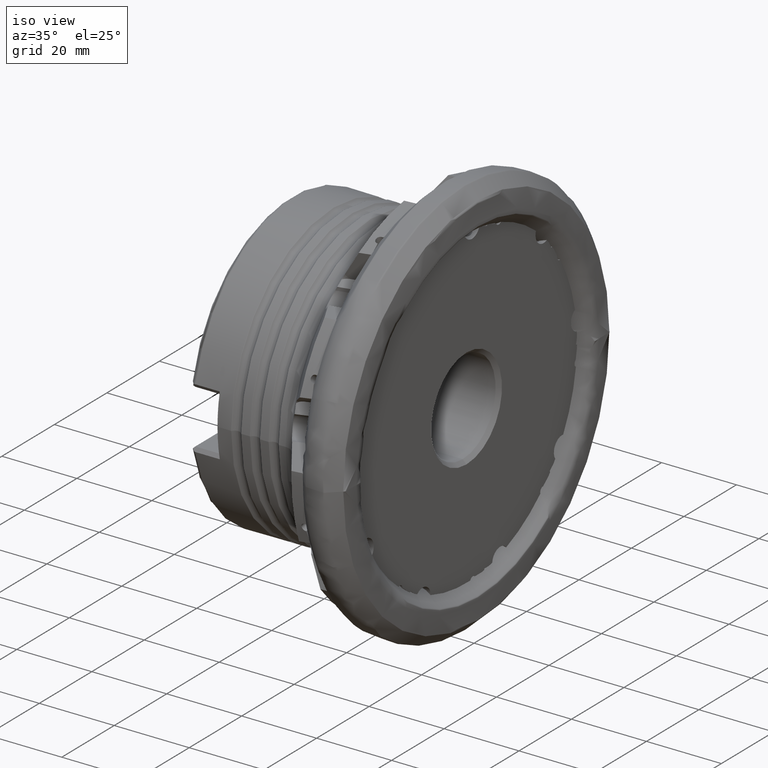
[diagram: clean part render]
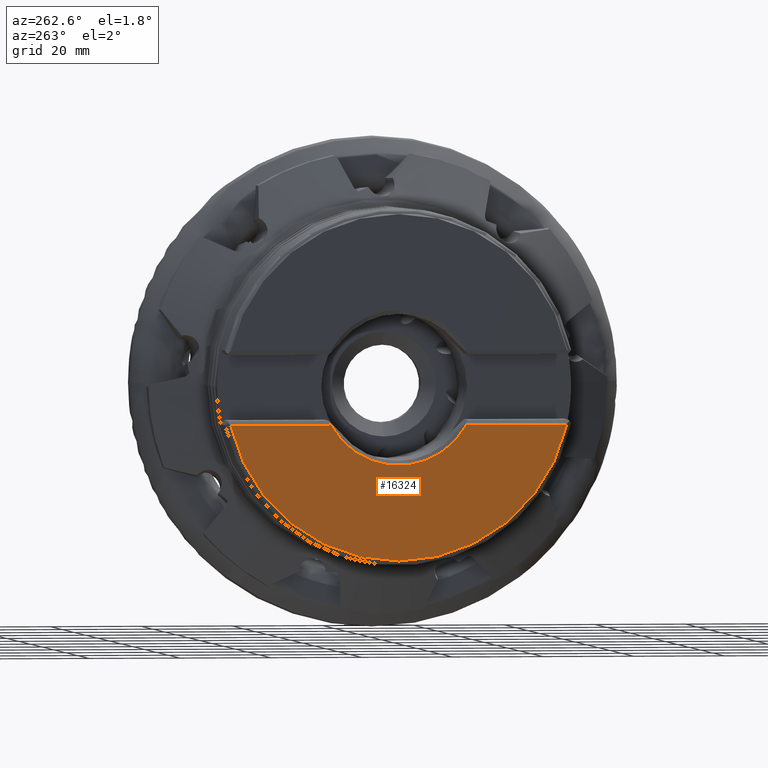
[diagram: tour spotlight — one face highlighted and labeled with its STEP entity id]
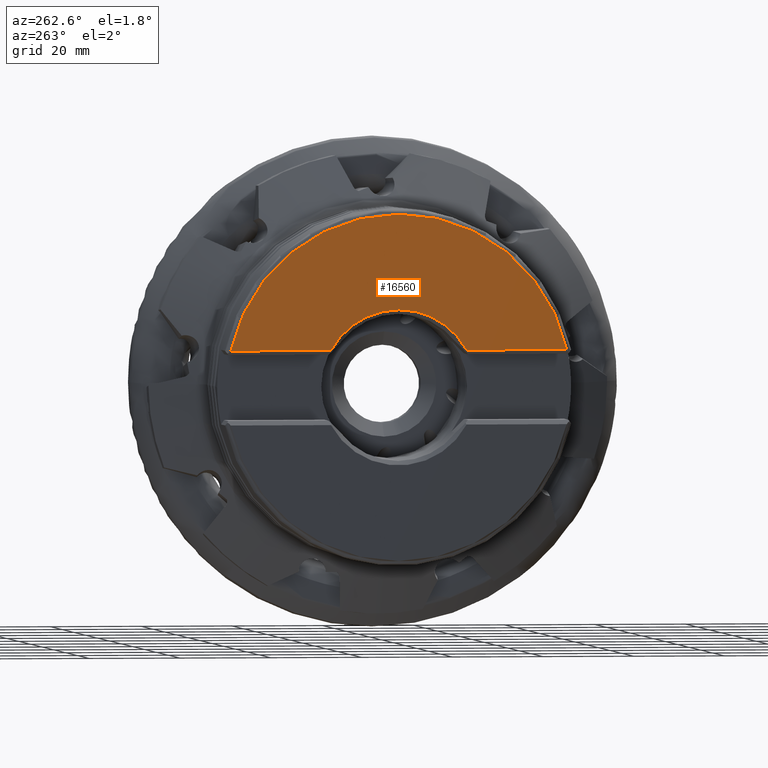
[diagram: tour spotlight — one face highlighted and labeled with its STEP entity id]
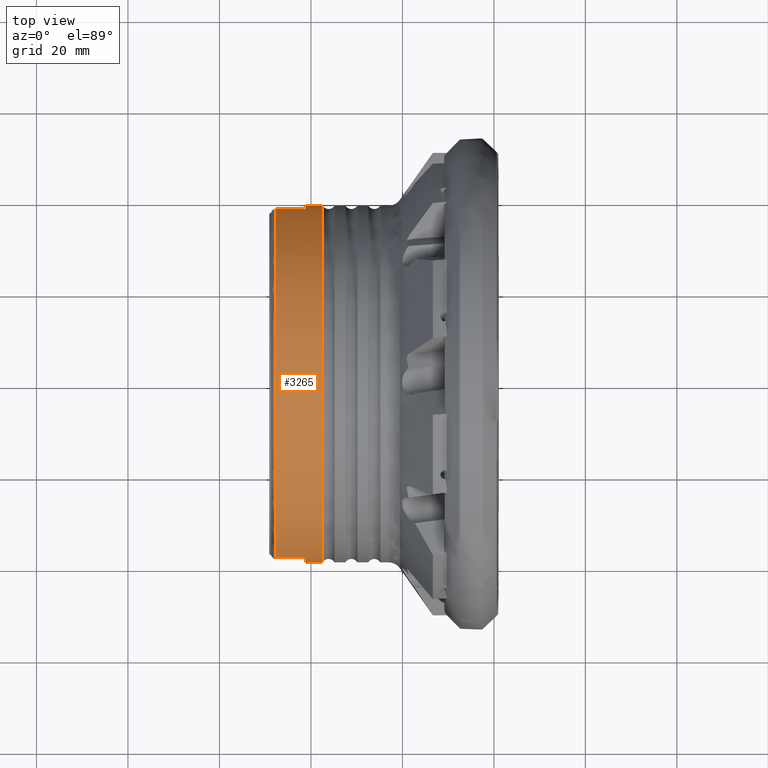
[diagram: tour spotlight — one face highlighted and labeled with its STEP entity id]
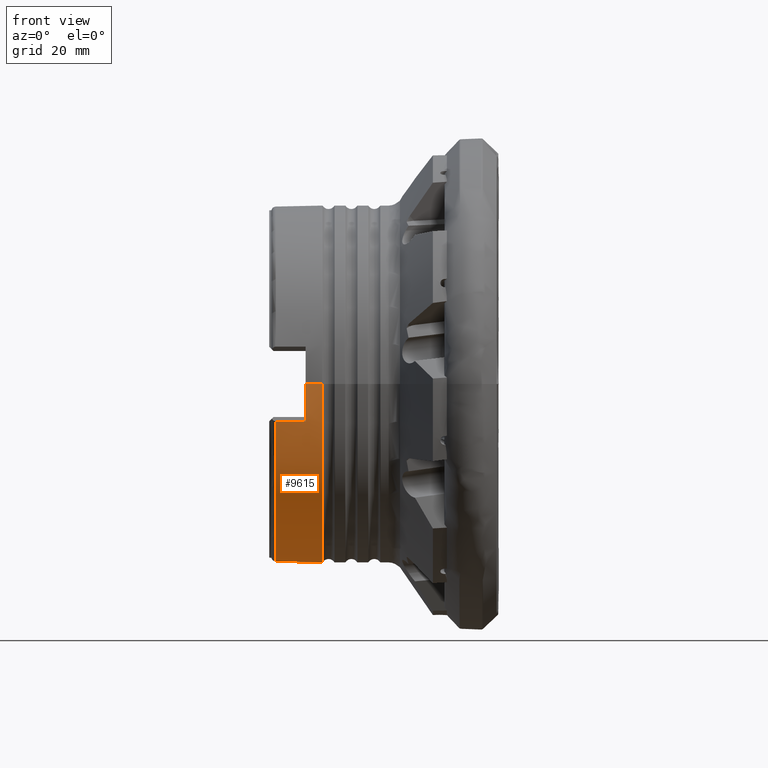
[diagram: tour spotlight — one face highlighted and labeled with its STEP entity id]
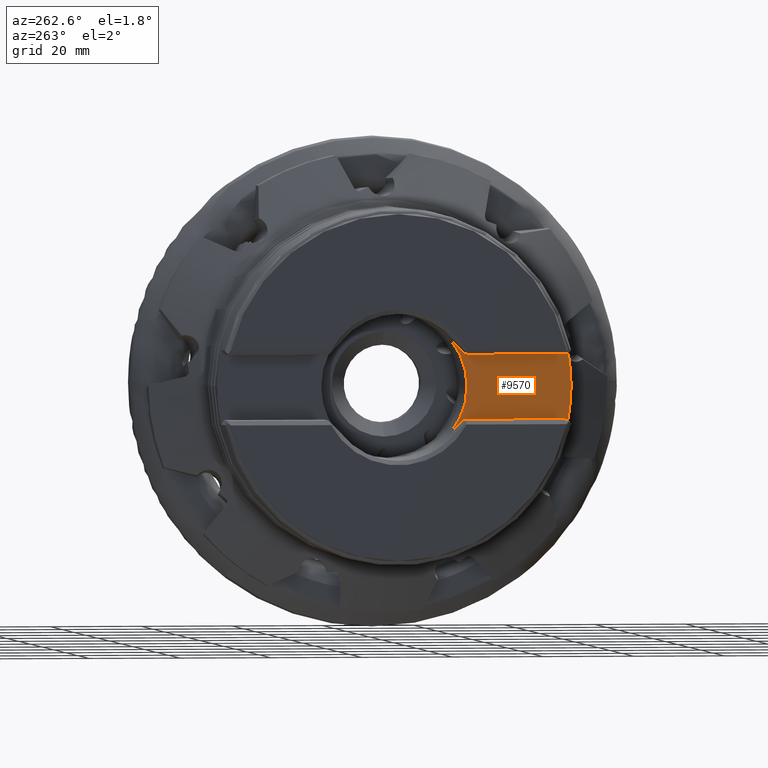
[diagram: tour spotlight — one face highlighted and labeled with its STEP entity id]
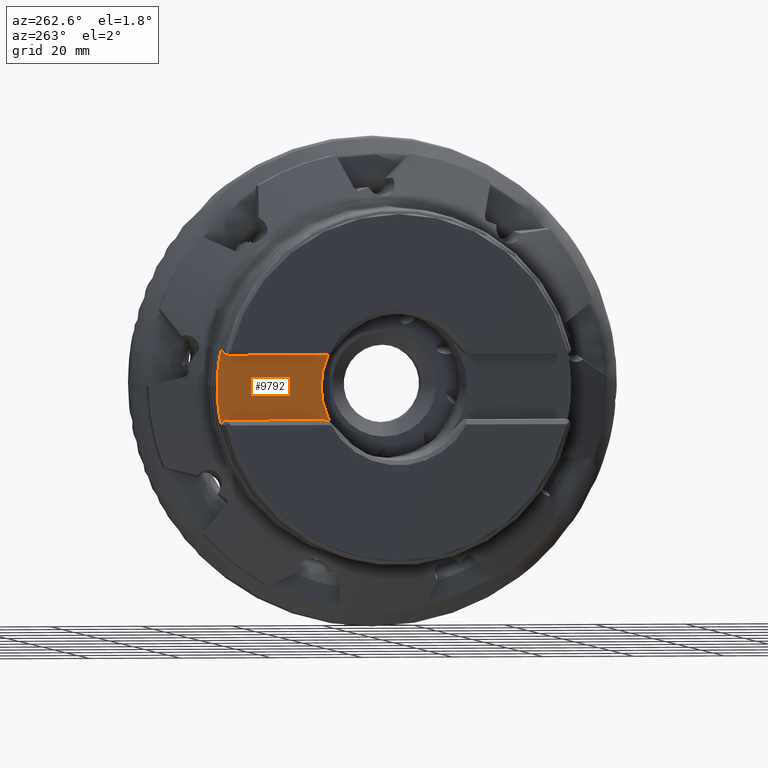
[diagram: tour spotlight — one face highlighted and labeled with its STEP entity id]
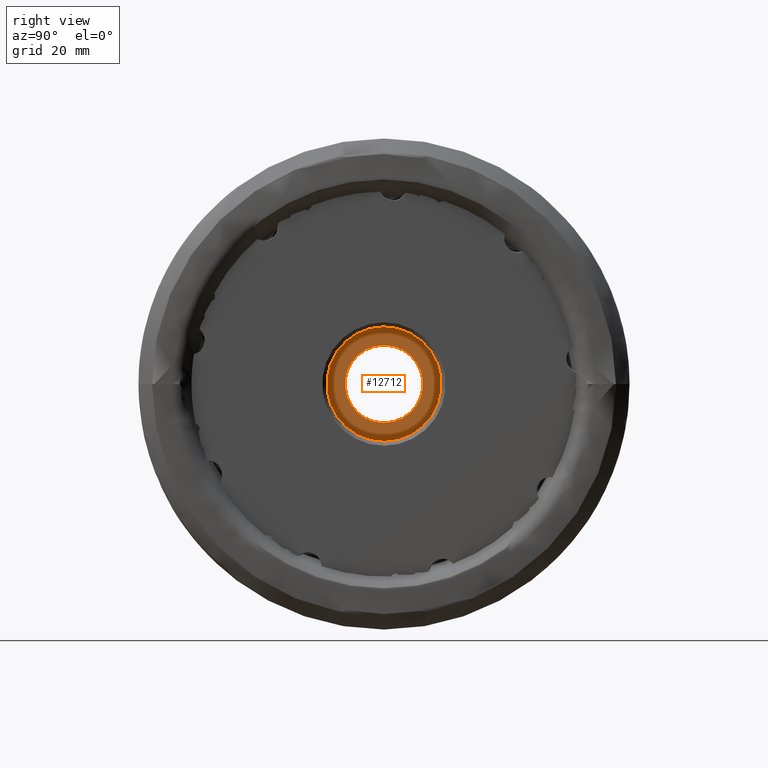
[diagram: tour spotlight — one face highlighted and labeled with its STEP entity id]
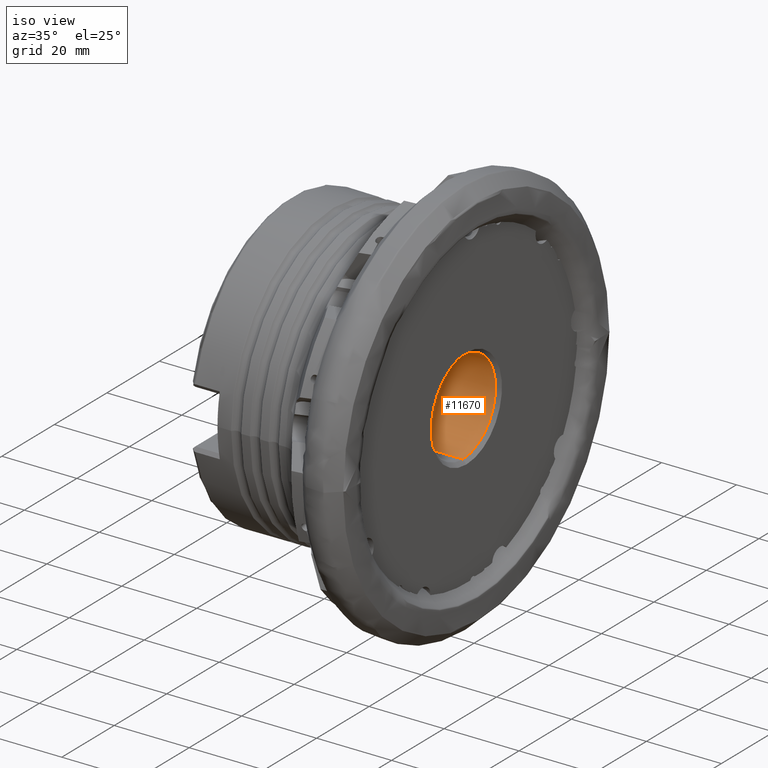
[diagram: tour spotlight — one face highlighted and labeled with its STEP entity id]
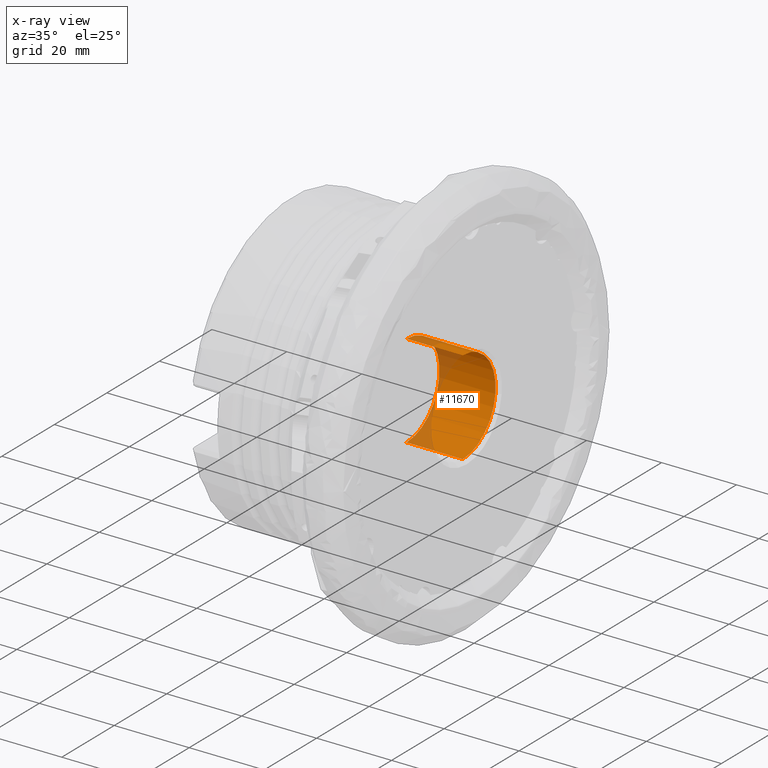
[diagram: x-ray of the same camera — body ghosted, this tour face saturated]
A machine part: a face-by-face anatomy tour. The part has 373 B-rep faces; the first image is the clean iso view, then the 8 largest visible faces are spotlighted one at a time (largest first), each with its STEP entity span.

Face 1 — auxiliary view, entity #16324. In plain terms, the highlighted planar face has unit normal (-1, -0, 0).
Definition (entity closure, byte-faithful):
#573 = ORIENTED_EDGE ( 'NONE', *, *, #5134, .T. ) ;
#898 = CARTESIAN_POINT ( 'NONE',  ( -49.09999999999998700, -54.99999999999999300, -8.149999999999970200 ) ) ;
#1058 = EDGE_CURVE ( 'NONE', #1277, #5319, #6986, .T. ) ;
#1277 = VERTEX_POINT ( 'NONE', #10115 ) ;
#1960 = DIRECTION ( 'NONE',  ( 0.0000000000000000000, -1.000000000000000000, 0.0000000000000000000 ) ) ;
#3374 = DIRECTION ( 'NONE',  ( 1.000000000000000000, 1.224646799147353700E-016, -0.0000000000000000000 ) ) ;
#3530 = ORIENTED_EDGE ( 'NONE', *, *, #4674, .T. ) ;
#3788 = CARTESIAN_POINT ( 'NONE',  ( -49.09999999999998700, -54.99999999999999300, -8.149999999999970200 ) ) ;
#3851 = EDGE_CURVE ( 'NONE', #14277, #17532, #11386, .T. ) ;
#4475 = CARTESIAN_POINT ( 'NONE',  ( -49.09999999999999400, 37.03616332997231100, -8.149999999999980800 ) ) ;
#4507 = DIRECTION ( 'NONE',  ( -1.000000000000000000, -1.224646799147353700E-016, 0.0000000000000000000 ) ) ;
#4524 = AXIS2_PLACEMENT_3D ( 'NONE', #9816, #4507, #13952 ) ;
#4674 = EDGE_CURVE ( 'NONE', #5319, #17532, #14117, .T. ) ;
#4782 = ORIENTED_EDGE ( 'NONE', *, *, #3851, .F. ) ;
#5134 = EDGE_CURVE ( 'NONE', #14277, #1277, #10305, .T. ) ;
#5319 = VERTEX_POINT ( 'NONE', #16248 ) ;
#5609 = AXIS2_PLACEMENT_3D ( 'NONE', #6976, #6993, #7051 ) ;
#6850 = CARTESIAN_POINT ( 'NONE',  ( -49.09999999999999400, -2.317644067386394200E-015, 0.0000000000000000000 ) ) ;
#6976 = CARTESIAN_POINT ( 'NONE',  ( -49.09999999999999400, -6.957263605894438000E-015, 0.0000000000000000000 ) ) ;
#6986 = CIRCLE ( 'NONE', #16392, 17.02499999999999900 ) ;
#6993 = DIRECTION ( 'NONE',  ( 1.000000000000000000, 1.224646799147353700E-016, -0.0000000000000000000 ) ) ;
#7051 = DIRECTION ( 'NONE',  ( 1.829766701682359500E-016, -1.000000000000000000, 0.0000000000000000000 ) ) ;
#7327 = ORIENTED_EDGE ( 'NONE', *, *, #1058, .T. ) ;
#7430 = FACE_OUTER_BOUND ( 'NONE', #17092, .T. ) ;
#9816 = CARTESIAN_POINT ( 'NONE',  ( -49.09999999999999400, -6.013015783813505900E-015, 0.0000000000000000000 ) ) ;
#10115 = CARTESIAN_POINT ( 'NONE',  ( -49.09999999999999400, -14.94751233483352800, -8.149999999999973700 ) ) ;
#10305 = LINE ( 'NONE', #898, #17094 ) ;
#10517 = VECTOR ( 'NONE', #17362, 1000.000000000000000 ) ;
#11386 = CIRCLE ( 'NONE', #5609, 37.92228756555322600 ) ;
#12583 = PLANE ( 'NONE',  #4524 ) ;
#13952 = DIRECTION ( 'NONE',  ( 1.224646799147353700E-016, -1.000000000000000000, 0.0000000000000000000 ) ) ;
#14117 = LINE ( 'NONE', #3788, #10517 ) ;
#14277 = VERTEX_POINT ( 'NONE', #17558 ) ;
#15848 = DIRECTION ( 'NONE',  ( -1.224646799147353700E-016, 1.000000000000000000, -1.224646799147338900E-016 ) ) ;
#16248 = CARTESIAN_POINT ( 'NONE',  ( -49.09999999999999400, 14.94751233483352600, -8.149999999999977300 ) ) ;
#16324 = ADVANCED_FACE ( 'NONE', ( #7430 ), #12583, .T. ) ;
#16392 = AXIS2_PLACEMENT_3D ( 'NONE', #6850, #3374, #1960 ) ;
#17092 = EDGE_LOOP ( 'NONE', ( #573, #7327, #3530, #4782 ) ) ;
#17094 = VECTOR ( 'NONE', #15848, 1000.000000000000000 ) ;
#17362 = DIRECTION ( 'NONE',  ( -1.224646799147353700E-016, 1.000000000000000000, -1.224646799147338900E-016 ) ) ;
#17532 = VERTEX_POINT ( 'NONE', #4475 ) ;
#17558 = CARTESIAN_POINT ( 'NONE',  ( -49.09999999999998700, -37.03616332997404500, -8.149999999999970200 ) ) ;

Face 2 — auxiliary view, entity #16560. In plain terms, the highlighted planar face has unit normal (-1, -0, 0).
Definition (entity closure, byte-faithful):
#668 = DIRECTION ( 'NONE',  ( 0.0000000000000000000, -1.000000000000000000, -8.881784197001252300E-016 ) ) ;
#1023 = DIRECTION ( 'NONE',  ( 1.224646799147353700E-016, -1.000000000000000000, -1.224646799147360800E-016 ) ) ;
#2411 = CARTESIAN_POINT ( 'NONE',  ( -49.09999999999999400, -6.013015783813505900E-015, 0.0000000000000000000 ) ) ;
#2452 = DIRECTION ( 'NONE',  ( 1.000000000000000000, 1.224646799147353700E-016, -0.0000000000000000000 ) ) ;
#2528 = CIRCLE ( 'NONE', #10397, 37.92228756555322600 ) ;
#2537 = EDGE_LOOP ( 'NONE', ( #16718, #15154, #14305, #8070, #7934 ) ) ;
#2991 = AXIS2_PLACEMENT_3D ( 'NONE', #17020, #8877, #668 ) ;
#3588 = LINE ( 'NONE', #4683, #14383 ) ;
#4310 = CARTESIAN_POINT ( 'NONE',  ( -49.09999999999999400, -6.957263605894438000E-015, 0.0000000000000000000 ) ) ;
#4683 = CARTESIAN_POINT ( 'NONE',  ( -49.09999999999998700, -54.99999999999999300, 8.149999999999996800 ) ) ;
#4809 = VERTEX_POINT ( 'NONE', #16449 ) ;
#5182 = PLANE ( 'NONE',  #15414 ) ;
#5308 = FACE_OUTER_BOUND ( 'NONE', #2537, .T. ) ;
#5516 = VERTEX_POINT ( 'NONE', #5958 ) ;
#5680 = DIRECTION ( 'NONE',  ( 1.829766701682359500E-016, -1.000000000000000000, 0.0000000000000000000 ) ) ;
#5958 = CARTESIAN_POINT ( 'NONE',  ( -49.09999999999998700, -37.03616332997403000, 8.149999999999998600 ) ) ;
#6230 = EDGE_CURVE ( 'NONE', #4809, #16068, #15795, .T. ) ;
#6534 = DIRECTION ( 'NONE',  ( 1.224646799147353700E-016, -1.000000000000000000, 0.0000000000000000000 ) ) ;
#6781 = VERTEX_POINT ( 'NONE', #13523 ) ;
#7438 = VERTEX_POINT ( 'NONE', #11263 ) ;
#7603 = EDGE_CURVE ( 'NONE', #7438, #6781, #10019, .T. ) ;
#7934 = ORIENTED_EDGE ( 'NONE', *, *, #6230, .T. ) ;
#8070 = ORIENTED_EDGE ( 'NONE', *, *, #8683, .T. ) ;
#8670 = AXIS2_PLACEMENT_3D ( 'NONE', #10586, #2452, #11940 ) ;
#8683 = EDGE_CURVE ( 'NONE', #6781, #4809, #11902, .T. ) ;
#8877 = DIRECTION ( 'NONE',  ( 1.000000000000000000, 1.224646799147353700E-016, -0.0000000000000000000 ) ) ;
#10019 = LINE ( 'NONE', #11877, #13604 ) ;
#10397 = AXIS2_PLACEMENT_3D ( 'NONE', #4310, #13751, #5680 ) ;
#10586 = CARTESIAN_POINT ( 'NONE',  ( -49.09999999999999400, -2.317644067386394200E-015, 0.0000000000000000000 ) ) ;
#10655 = EDGE_CURVE ( 'NONE', #7438, #5516, #2528, .T. ) ;
#11263 = CARTESIAN_POINT ( 'NONE',  ( -49.09999999999998000, 37.03616332997404500, 8.149999999999993200 ) ) ;
#11783 = CARTESIAN_POINT ( 'NONE',  ( -49.09999999999999400, -14.94751233483351300, 8.150000000000002100 ) ) ;
#11877 = CARTESIAN_POINT ( 'NONE',  ( -49.09999999999998700, -54.99999999999999300, 8.149999999999996800 ) ) ;
#11902 = CIRCLE ( 'NONE', #2991, 17.02499999999999900 ) ;
#11940 = DIRECTION ( 'NONE',  ( 0.0000000000000000000, -1.000000000000000000, 0.0000000000000000000 ) ) ;
#11943 = EDGE_CURVE ( 'NONE', #16068, #5516, #3588, .T. ) ;
#13523 = CARTESIAN_POINT ( 'NONE',  ( -49.09999999999999400, 14.94751233483351000, 8.150000000000005700 ) ) ;
#13604 = VECTOR ( 'NONE', #1023, 1000.000000000000000 ) ;
#13751 = DIRECTION ( 'NONE',  ( 1.000000000000000000, 1.224646799147353700E-016, -0.0000000000000000000 ) ) ;
#14305 = ORIENTED_EDGE ( 'NONE', *, *, #7603, .T. ) ;
#14383 = VECTOR ( 'NONE', #16873, 1000.000000000000000 ) ;
#14636 = DIRECTION ( 'NONE',  ( -1.000000000000000000, -1.224646799147353700E-016, 0.0000000000000000000 ) ) ;
#15154 = ORIENTED_EDGE ( 'NONE', *, *, #10655, .F. ) ;
#15414 = AXIS2_PLACEMENT_3D ( 'NONE', #2411, #14636, #6534 ) ;
#15795 = CIRCLE ( 'NONE', #8670, 17.02499999999999900 ) ;
#16068 = VERTEX_POINT ( 'NONE', #11783 ) ;
#16449 = CARTESIAN_POINT ( 'NONE',  ( -49.09999999999999400, 0.0000000000000000000, 17.02499999999999900 ) ) ;
#16560 = ADVANCED_FACE ( 'NONE', ( #5308 ), #5182, .T. ) ;
#16718 = ORIENTED_EDGE ( 'NONE', *, *, #11943, .T. ) ;
#16873 = DIRECTION ( 'NONE',  ( 1.224646799147353700E-016, -1.000000000000000000, -1.224646799147360800E-016 ) ) ;
#17020 = CARTESIAN_POINT ( 'NONE',  ( -49.09999999999999400, -2.317644067386394200E-015, 0.0000000000000000000 ) ) ;

Face 3 — top view, entity #3265. In plain terms, the highlighted cylindrical surface (partial cylindrical patch) has radius 39 mm, axis along (1, 0, -0).
Definition (entity closure, byte-faithful):
#383 = DIRECTION ( 'NONE',  ( -1.000000000000000000, -0.0000000000000000000, 0.0000000000000000000 ) ) ;
#434 = LINE ( 'NONE', #9665, #7751 ) ;
#761 = ORIENTED_EDGE ( 'NONE', *, *, #7825, .F. ) ;
#766 = ORIENTED_EDGE ( 'NONE', *, *, #8014, .T. ) ;
#821 = CARTESIAN_POINT ( 'NONE',  ( -41.14999999999999100, 38.13502706105393300, 8.168213455382060700 ) ) ;
#1305 = CARTESIAN_POINT ( 'NONE',  ( -41.14999999999999100, -5.039421578491359400E-015, 0.0000000000000000000 ) ) ;
#1484 = DIRECTION ( 'NONE',  ( -1.000000000000000000, -1.224646799147353700E-016, 0.0000000000000000000 ) ) ;
#1939 = LINE ( 'NONE', #15662, #15968 ) ;
#2397 = VERTEX_POINT ( 'NONE', #9829 ) ;
#2426 = CARTESIAN_POINT ( 'NONE',  ( 4.776122516674680200E-015, -39.00000000000000700, 4.776122516674678700E-015 ) ) ;
#2608 = AXIS2_PLACEMENT_3D ( 'NONE', #1305, #10855, #2727 ) ;
#2713 = VERTEX_POINT ( 'NONE', #16785 ) ;
#2727 = DIRECTION ( 'NONE',  ( 0.0000000000000000000, 0.0000000000000000000, -1.000000000000000000 ) ) ;
#3092 = ORIENTED_EDGE ( 'NONE', *, *, #12053, .F. ) ;
#3156 = CIRCLE ( 'NONE', #5433, 39.00000000000000700 ) ;
#3265 = ADVANCED_FACE ( 'NONE', ( #16065 ), #12432, .T. ) ;
#3528 = CARTESIAN_POINT ( 'NONE',  ( -37.55978721798717900, -4.599747319316368700E-015, 0.0000000000000000000 ) ) ;
#3539 = ORIENTED_EDGE ( 'NONE', *, *, #15251, .T. ) ;
#3883 = LINE ( 'NONE', #2426, #7482 ) ;
#4278 = ORIENTED_EDGE ( 'NONE', *, *, #5754, .T. ) ;
#4435 = AXIS2_PLACEMENT_3D ( 'NONE', #14542, #6447, #15913 ) ;
#4779 = CARTESIAN_POINT ( 'NONE',  ( -47.64999999999999100, 38.13502706105394000, 8.168213455382062400 ) ) ;
#4789 = VERTEX_POINT ( 'NONE', #8074 ) ;
#4807 = VECTOR ( 'NONE', #5286, 1000.000000000000000 ) ;
#4909 = DIRECTION ( 'NONE',  ( -1.779203565104417100E-016, 1.000000000000000000, 0.0000000000000000000 ) ) ;
#5286 = DIRECTION ( 'NONE',  ( 1.000000000000000000, 1.224646799147353700E-016, -0.0000000000000000000 ) ) ;
#5383 = EDGE_CURVE ( 'NONE', #12116, #7543, #434, .T. ) ;
#5433 = AXIS2_PLACEMENT_3D ( 'NONE', #3528, #12983, #4909 ) ;
#5754 = EDGE_CURVE ( 'NONE', #6384, #8929, #11974, .T. ) ;
#6137 = DIRECTION ( 'NONE',  ( 1.000000000000000000, 1.224646799147353700E-016, -0.0000000000000000000 ) ) ;
#6159 = DIRECTION ( 'NONE',  ( -1.224646799147353700E-016, 1.000000000000000000, 0.0000000000000000000 ) ) ;
#6221 = DIRECTION ( 'NONE',  ( 1.000000000000000000, 1.224646799147353700E-016, -0.0000000000000000000 ) ) ;
#6246 = CARTESIAN_POINT ( 'NONE',  ( 0.0000000000000000000, 0.0000000000000000000, 0.0000000000000000000 ) ) ;
#6384 = VERTEX_POINT ( 'NONE', #12572 ) ;
#6447 = DIRECTION ( 'NONE',  ( 1.000000000000000000, 1.224646799147353700E-016, -0.0000000000000000000 ) ) ;
#6675 = CIRCLE ( 'NONE', #4435, 39.00000000000001400 ) ;
#7027 = EDGE_CURVE ( 'NONE', #2397, #2713, #1939, .T. ) ;
#7172 = AXIS2_PLACEMENT_3D ( 'NONE', #6246, #6137, #6159 ) ;
#7237 = EDGE_CURVE ( 'NONE', #4789, #8929, #11089, .T. ) ;
#7482 = VECTOR ( 'NONE', #17341, 1000.000000000000000 ) ;
#7543 = VERTEX_POINT ( 'NONE', #4779 ) ;
#7751 = VECTOR ( 'NONE', #1484, 1000.000000000000000 ) ;
#7825 = EDGE_CURVE ( 'NONE', #12116, #2397, #16375, .T. ) ;
#8014 = EDGE_CURVE ( 'NONE', #4789, #8424, #3883, .T. ) ;
#8020 = ORIENTED_EDGE ( 'NONE', *, *, #7237, .F. ) ;
#8074 = CARTESIAN_POINT ( 'NONE',  ( -41.14999999999999100, -39.00000000000001400, 4.776122516674678700E-015 ) ) ;
#8424 = VERTEX_POINT ( 'NONE', #17394 ) ;
#8518 = ORIENTED_EDGE ( 'NONE', *, *, #7027, .F. ) ;
#8611 = CARTESIAN_POINT ( 'NONE',  ( -41.14999999999999100, -5.039421578491359400E-015, 0.0000000000000000000 ) ) ;
#8929 = VERTEX_POINT ( 'NONE', #14786 ) ;
#9665 = CARTESIAN_POINT ( 'NONE',  ( -4.670193882571740500E-015, 38.13502706105393300, 8.168213455382064200 ) ) ;
#9829 = CARTESIAN_POINT ( 'NONE',  ( -41.14999999999999100, 39.00000000000000000, 0.0000000000000000000 ) ) ;
#9977 = DIRECTION ( 'NONE',  ( 0.0000000000000000000, 1.065814103640150300E-014, -1.000000000000000000 ) ) ;
#10855 = DIRECTION ( 'NONE',  ( -1.000000000000000000, -0.0000000000000000000, 0.0000000000000000000 ) ) ;
#11089 = CIRCLE ( 'NONE', #2608, 39.00000000000000700 ) ;
#11974 = LINE ( 'NONE', #14739, #4807 ) ;
#12053 = EDGE_CURVE ( 'NONE', #2713, #8424, #3156, .T. ) ;
#12116 = VERTEX_POINT ( 'NONE', #821 ) ;
#12432 = CYLINDRICAL_SURFACE ( 'NONE', #7172, 39.00000000000000700 ) ;
#12572 = CARTESIAN_POINT ( 'NONE',  ( -47.64999999999998400, -38.13502706105394700, 8.168213455382064200 ) ) ;
#12983 = DIRECTION ( 'NONE',  ( 1.000000000000000000, 1.224646799147353700E-016, -0.0000000000000000000 ) ) ;
#14542 = CARTESIAN_POINT ( 'NONE',  ( -47.64999999999999100, -5.835441997937139400E-015, 0.0000000000000000000 ) ) ;
#14739 = CARTESIAN_POINT ( 'NONE',  ( 4.670193882571739800E-015, -38.13502706105393300, 8.168213455382069600 ) ) ;
#14786 = CARTESIAN_POINT ( 'NONE',  ( -41.14999999999999100, -38.13502706105394000, 8.168213455382064200 ) ) ;
#15251 = EDGE_CURVE ( 'NONE', #7543, #6384, #6675, .T. ) ;
#15662 = CARTESIAN_POINT ( 'NONE',  ( -4.776122516674680200E-015, 39.00000000000000700, 0.0000000000000000000 ) ) ;
#15913 = DIRECTION ( 'NONE',  ( -1.779203565104416900E-016, 1.000000000000000000, 0.0000000000000000000 ) ) ;
#15915 = AXIS2_PLACEMENT_3D ( 'NONE', #8611, #383, #9977 ) ;
#15968 = VECTOR ( 'NONE', #6221, 1000.000000000000000 ) ;
#16065 = FACE_OUTER_BOUND ( 'NONE', #17561, .T. ) ;
#16255 = ORIENTED_EDGE ( 'NONE', *, *, #5383, .T. ) ;
#16375 = CIRCLE ( 'NONE', #15915, 39.00000000000000700 ) ;
#16785 = CARTESIAN_POINT ( 'NONE',  ( -37.55978721798718600, 39.00000000000000000, 0.0000000000000000000 ) ) ;
#17341 = DIRECTION ( 'NONE',  ( 1.000000000000000000, 1.224646799147353700E-016, -0.0000000000000000000 ) ) ;
#17394 = CARTESIAN_POINT ( 'NONE',  ( -37.55978721798717100, -39.00000000000001400, 4.776122516674678700E-015 ) ) ;
#17561 = EDGE_LOOP ( 'NONE', ( #8020, #766, #3092, #8518, #761, #16255, #3539, #4278 ) ) ;

Face 4 — front view, entity #9615. In plain terms, the highlighted cylindrical surface (partial cylindrical patch) has radius 39 mm, axis along (1, 0, -0).
Definition (entity closure, byte-faithful):
#1 = LINE ( 'NONE', #11144, #6903 ) ;
#526 = DIRECTION ( 'NONE',  ( -1.000000000000000000, -1.224646799147353700E-016, 0.0000000000000000000 ) ) ;
#663 = DIRECTION ( 'NONE',  ( 1.000000000000000000, 1.224646799147353700E-016, -0.0000000000000000000 ) ) ;
#1154 = ORIENTED_EDGE ( 'NONE', *, *, #7027, .T. ) ;
#1202 = ORIENTED_EDGE ( 'NONE', *, *, #3979, .F. ) ;
#1403 = VERTEX_POINT ( 'NONE', #16544 ) ;
#1600 = DIRECTION ( 'NONE',  ( 1.000000000000000000, 1.224646799147353700E-016, -0.0000000000000000000 ) ) ;
#1740 = CIRCLE ( 'NONE', #4150, 39.00000000000001400 ) ;
#1939 = LINE ( 'NONE', #15662, #15968 ) ;
#1944 = AXIS2_PLACEMENT_3D ( 'NONE', #13433, #12087, #16179 ) ;
#1953 = ORIENTED_EDGE ( 'NONE', *, *, #5438, .T. ) ;
#2275 = CARTESIAN_POINT ( 'NONE',  ( -41.14999999999999100, 38.13502706105394000, -8.168213455382019800 ) ) ;
#2397 = VERTEX_POINT ( 'NONE', #9829 ) ;
#2426 = CARTESIAN_POINT ( 'NONE',  ( 4.776122516674680200E-015, -39.00000000000000700, 4.776122516674678700E-015 ) ) ;
#2713 = VERTEX_POINT ( 'NONE', #16785 ) ;
#3610 = DIRECTION ( 'NONE',  ( 1.000000000000000000, 1.224646799147353700E-016, -0.0000000000000000000 ) ) ;
#3850 = CYLINDRICAL_SURFACE ( 'NONE', #1944, 39.00000000000000700 ) ;
#3883 = LINE ( 'NONE', #2426, #7482 ) ;
#3979 = EDGE_CURVE ( 'NONE', #14437, #4789, #7369, .T. ) ;
#4150 = AXIS2_PLACEMENT_3D ( 'NONE', #8873, #663, #10246 ) ;
#4789 = VERTEX_POINT ( 'NONE', #8074 ) ;
#5067 = AXIS2_PLACEMENT_3D ( 'NONE', #11714, #3610, #13072 ) ;
#5314 = ORIENTED_EDGE ( 'NONE', *, *, #6154, .F. ) ;
#5438 = EDGE_CURVE ( 'NONE', #14947, #11288, #1, .T. ) ;
#6073 = EDGE_CURVE ( 'NONE', #1403, #14947, #1740, .T. ) ;
#6154 = EDGE_CURVE ( 'NONE', #8424, #2713, #12588, .T. ) ;
#6221 = DIRECTION ( 'NONE',  ( 1.000000000000000000, 1.224646799147353700E-016, -0.0000000000000000000 ) ) ;
#6315 = ORIENTED_EDGE ( 'NONE', *, *, #9150, .T. ) ;
#6500 = CARTESIAN_POINT ( 'NONE',  ( -41.14999999999999100, -5.039421578491359400E-015, 0.0000000000000000000 ) ) ;
#6790 = ORIENTED_EDGE ( 'NONE', *, *, #8014, .F. ) ;
#6903 = VECTOR ( 'NONE', #1600, 1000.000000000000000 ) ;
#7027 = EDGE_CURVE ( 'NONE', #2397, #2713, #1939, .T. ) ;
#7128 = EDGE_CURVE ( 'NONE', #2397, #11288, #15554, .T. ) ;
#7369 = CIRCLE ( 'NONE', #12851, 39.00000000000000700 ) ;
#7482 = VECTOR ( 'NONE', #17341, 1000.000000000000000 ) ;
#7843 = DIRECTION ( 'NONE',  ( 0.0000000000000000000, 0.0000000000000000000, -1.000000000000000000 ) ) ;
#8014 = EDGE_CURVE ( 'NONE', #4789, #8424, #3883, .T. ) ;
#8074 = CARTESIAN_POINT ( 'NONE',  ( -41.14999999999999100, -39.00000000000001400, 4.776122516674678700E-015 ) ) ;
#8176 = DIRECTION ( 'NONE',  ( -1.000000000000000000, -0.0000000000000000000, 0.0000000000000000000 ) ) ;
#8215 = DIRECTION ( 'NONE',  ( 0.0000000000000000000, 0.0000000000000000000, -1.000000000000000000 ) ) ;
#8424 = VERTEX_POINT ( 'NONE', #17394 ) ;
#8456 = CARTESIAN_POINT ( 'NONE',  ( -41.14999999999999100, -38.13502706105394700, -8.168213455382026900 ) ) ;
#8493 = VECTOR ( 'NONE', #526, 1000.000000000000000 ) ;
#8737 = CARTESIAN_POINT ( 'NONE',  ( 4.670193882571739800E-015, -38.13502706105393300, -8.168213455382016300 ) ) ;
#8873 = CARTESIAN_POINT ( 'NONE',  ( -47.64999999999999100, -5.835441997937139400E-015, 0.0000000000000000000 ) ) ;
#9150 = EDGE_CURVE ( 'NONE', #14437, #1403, #12112, .T. ) ;
#9413 = CARTESIAN_POINT ( 'NONE',  ( -41.14999999999999100, -5.039421578491359400E-015, 0.0000000000000000000 ) ) ;
#9615 = ADVANCED_FACE ( 'NONE', ( #14647 ), #3850, .T. ) ;
#9829 = CARTESIAN_POINT ( 'NONE',  ( -41.14999999999999100, 39.00000000000000000, 0.0000000000000000000 ) ) ;
#10020 = ORIENTED_EDGE ( 'NONE', *, *, #6073, .T. ) ;
#10246 = DIRECTION ( 'NONE',  ( -1.779203565104416900E-016, 1.000000000000000000, 0.0000000000000000000 ) ) ;
#11144 = CARTESIAN_POINT ( 'NONE',  ( -4.670193882571746900E-015, 38.13502706105394700, -8.168213455382007400 ) ) ;
#11288 = VERTEX_POINT ( 'NONE', #2275 ) ;
#11714 = CARTESIAN_POINT ( 'NONE',  ( -37.55978721798717900, -4.599747319316368700E-015, 0.0000000000000000000 ) ) ;
#12040 = AXIS2_PLACEMENT_3D ( 'NONE', #6500, #15959, #7843 ) ;
#12087 = DIRECTION ( 'NONE',  ( 1.000000000000000000, 1.224646799147353700E-016, -0.0000000000000000000 ) ) ;
#12112 = LINE ( 'NONE', #8737, #8493 ) ;
#12406 = CARTESIAN_POINT ( 'NONE',  ( -47.64999999999999900, 38.13502706105394700, -8.168213455382023400 ) ) ;
#12588 = CIRCLE ( 'NONE', #5067, 39.00000000000000700 ) ;
#12851 = AXIS2_PLACEMENT_3D ( 'NONE', #9413, #8176, #8215 ) ;
#13072 = DIRECTION ( 'NONE',  ( -1.779203565104417100E-016, 1.000000000000000000, 0.0000000000000000000 ) ) ;
#13132 = EDGE_LOOP ( 'NONE', ( #6790, #1202, #6315, #10020, #1953, #14189, #1154, #5314 ) ) ;
#13433 = CARTESIAN_POINT ( 'NONE',  ( 0.0000000000000000000, 0.0000000000000000000, 0.0000000000000000000 ) ) ;
#14189 = ORIENTED_EDGE ( 'NONE', *, *, #7128, .F. ) ;
#14437 = VERTEX_POINT ( 'NONE', #8456 ) ;
#14647 = FACE_OUTER_BOUND ( 'NONE', #13132, .T. ) ;
#14947 = VERTEX_POINT ( 'NONE', #12406 ) ;
#15554 = CIRCLE ( 'NONE', #12040, 39.00000000000000700 ) ;
#15662 = CARTESIAN_POINT ( 'NONE',  ( -4.776122516674680200E-015, 39.00000000000000700, 0.0000000000000000000 ) ) ;
#15959 = DIRECTION ( 'NONE',  ( -1.000000000000000000, -0.0000000000000000000, 0.0000000000000000000 ) ) ;
#15968 = VECTOR ( 'NONE', #6221, 1000.000000000000000 ) ;
#16179 = DIRECTION ( 'NONE',  ( -1.224646799147353700E-016, 1.000000000000000000, 0.0000000000000000000 ) ) ;
#16544 = CARTESIAN_POINT ( 'NONE',  ( -47.64999999999999100, -38.13502706105395400, -8.168213455382039400 ) ) ;
#16785 = CARTESIAN_POINT ( 'NONE',  ( -37.55978721798718600, 39.00000000000000000, 0.0000000000000000000 ) ) ;
#17341 = DIRECTION ( 'NONE',  ( 1.000000000000000000, 1.224646799147353700E-016, -0.0000000000000000000 ) ) ;
#17394 = CARTESIAN_POINT ( 'NONE',  ( -37.55978721798717100, -39.00000000000001400, 4.776122516674678700E-015 ) ) ;

Face 5 — auxiliary view, entity #9570. In plain terms, the highlighted planar face has unit normal (1, 0, -0).
Definition (entity closure, byte-faithful):
#57 = AXIS2_PLACEMENT_3D ( 'NONE', #13324, #5245, #14695 ) ;
#216 = EDGE_CURVE ( 'NONE', #9046, #10021, #5252, .T. ) ;
#436 = CARTESIAN_POINT ( 'NONE',  ( -41.14999999999999100, -54.99999999999999300, 7.200000000000006400 ) ) ;
#1077 = EDGE_CURVE ( 'NONE', #1429, #13283, #10582, .T. ) ;
#1105 = CIRCLE ( 'NONE', #16374, 16.07499999999999200 ) ;
#1140 = EDGE_LOOP ( 'NONE', ( #15297, #6746, #12165, #13636, #15053, #6567, #7880, #3321, #14686 ) ) ;
#1189 = LINE ( 'NONE', #10386, #8455 ) ;
#1305 = CARTESIAN_POINT ( 'NONE',  ( -41.14999999999999100, -5.039421578491359400E-015, 0.0000000000000000000 ) ) ;
#1316 = VECTOR ( 'NONE', #16131, 1000.000000000000000 ) ;
#1429 = VERTEX_POINT ( 'NONE', #3741 ) ;
#1620 = CARTESIAN_POINT ( 'NONE',  ( -41.14999999999999100, -42.38619553379956500, -19.81380446620045900 ) ) ;
#1806 = VERTEX_POINT ( 'NONE', #16224 ) ;
#2240 = DIRECTION ( 'NONE',  ( -0.0000000000000000000, 0.5644094237264961600, -0.8254950044723010600 ) ) ;
#2608 = AXIS2_PLACEMENT_3D ( 'NONE', #1305, #10855, #2727 ) ;
#2727 = DIRECTION ( 'NONE',  ( 0.0000000000000000000, 0.0000000000000000000, -1.000000000000000000 ) ) ;
#2984 = CARTESIAN_POINT ( 'NONE',  ( -41.14999999999999100, -15.37239106759901700, 7.200000000000006400 ) ) ;
#3321 = ORIENTED_EDGE ( 'NONE', *, *, #13648, .F. ) ;
#3741 = CARTESIAN_POINT ( 'NONE',  ( -41.14999999999999100, -37.47303783587896900, 7.200000000000006400 ) ) ;
#3979 = EDGE_CURVE ( 'NONE', #14437, #4789, #7369, .T. ) ;
#4065 = CARTESIAN_POINT ( 'NONE',  ( -41.14999999999999100, -35.18619553379941300, 12.61380446620050900 ) ) ;
#4114 = VERTEX_POINT ( 'NONE', #15829 ) ;
#4245 = VECTOR ( 'NONE', #5803, 1000.000000000000100 ) ;
#4659 = DIRECTION ( 'NONE',  ( -0.0000000000000000000, -0.7071067811865461300, 0.7071067811865489100 ) ) ;
#4789 = VERTEX_POINT ( 'NONE', #8074 ) ;
#4801 = DIRECTION ( 'NONE',  ( -1.000000000000000000, -0.0000000000000000000, 0.0000000000000000000 ) ) ;
#5001 = EDGE_CURVE ( 'NONE', #9046, #1806, #1105, .T. ) ;
#5245 = DIRECTION ( 'NONE',  ( 1.000000000000000000, 0.0000000000000000000, -0.0000000000000000000 ) ) ;
#5252 = LINE ( 'NONE', #4065, #11582 ) ;
#5803 = DIRECTION ( 'NONE',  ( 0.0000000000000000000, 0.7071067811865486800, 0.7071067811865463500 ) ) ;
#6567 = ORIENTED_EDGE ( 'NONE', *, *, #5001, .F. ) ;
#6665 = CARTESIAN_POINT ( 'NONE',  ( -41.14999999999999100, -54.99999999999999300, -7.199999999999993100 ) ) ;
#6746 = ORIENTED_EDGE ( 'NONE', *, *, #7237, .T. ) ;
#6887 = CARTESIAN_POINT ( 'NONE',  ( -41.14999999999999100, -43.05639180673931300, -15.36611243078624700 ) ) ;
#6974 = CARTESIAN_POINT ( 'NONE',  ( -41.14999999999999100, -12.63697415105849100, -9.935416916540509300 ) ) ;
#7237 = EDGE_CURVE ( 'NONE', #4789, #8929, #11089, .T. ) ;
#7275 = EDGE_CURVE ( 'NONE', #4114, #14437, #7904, .T. ) ;
#7369 = CIRCLE ( 'NONE', #12851, 39.00000000000000700 ) ;
#7821 = LINE ( 'NONE', #1620, #4245 ) ;
#7880 = ORIENTED_EDGE ( 'NONE', *, *, #216, .T. ) ;
#7904 = LINE ( 'NONE', #6887, #13828 ) ;
#8074 = CARTESIAN_POINT ( 'NONE',  ( -41.14999999999999100, -39.00000000000001400, 4.776122516674678700E-015 ) ) ;
#8176 = DIRECTION ( 'NONE',  ( -1.000000000000000000, -0.0000000000000000000, 0.0000000000000000000 ) ) ;
#8215 = DIRECTION ( 'NONE',  ( 0.0000000000000000000, 0.0000000000000000000, -1.000000000000000000 ) ) ;
#8281 = FACE_OUTER_BOUND ( 'NONE', #1140, .T. ) ;
#8455 = VECTOR ( 'NONE', #2240, 1000.000000000000100 ) ;
#8456 = CARTESIAN_POINT ( 'NONE',  ( -41.14999999999999100, -38.13502706105394700, -8.168213455382026900 ) ) ;
#8929 = VERTEX_POINT ( 'NONE', #14786 ) ;
#9046 = VERTEX_POINT ( 'NONE', #6974 ) ;
#9229 = CARTESIAN_POINT ( 'NONE',  ( -41.14999999999999100, -15.37239106759899500, -7.199999999999993100 ) ) ;
#9413 = CARTESIAN_POINT ( 'NONE',  ( -41.14999999999999100, -5.039421578491359400E-015, 0.0000000000000000000 ) ) ;
#9570 = ADVANCED_FACE ( 'NONE', ( #8281 ), #11963, .F. ) ;
#10021 = VERTEX_POINT ( 'NONE', #9229 ) ;
#10386 = CARTESIAN_POINT ( 'NONE',  ( -41.14999999999999100, -36.34718470614771500, 5.553347596100688400 ) ) ;
#10582 = LINE ( 'NONE', #436, #17395 ) ;
#10855 = DIRECTION ( 'NONE',  ( -1.000000000000000000, -0.0000000000000000000, 0.0000000000000000000 ) ) ;
#10868 = EDGE_CURVE ( 'NONE', #8929, #1429, #1189, .T. ) ;
#11089 = CIRCLE ( 'NONE', #2608, 39.00000000000000700 ) ;
#11582 = VECTOR ( 'NONE', #4659, 1000.000000000000100 ) ;
#11963 = PLANE ( 'NONE',  #57 ) ;
#12165 = ORIENTED_EDGE ( 'NONE', *, *, #10868, .T. ) ;
#12851 = AXIS2_PLACEMENT_3D ( 'NONE', #9413, #8176, #8215 ) ;
#12879 = CARTESIAN_POINT ( 'NONE',  ( -41.14999999999999100, 0.0000000000000000000, 0.0000000000000000000 ) ) ;
#13283 = VERTEX_POINT ( 'NONE', #2984 ) ;
#13324 = CARTESIAN_POINT ( 'NONE',  ( -41.14999999999999100, -54.99999999999999300, -7.199999999999993100 ) ) ;
#13619 = DIRECTION ( 'NONE',  ( -0.0000000000000000000, -0.5644094237264902800, -0.8254950044723051700 ) ) ;
#13636 = ORIENTED_EDGE ( 'NONE', *, *, #1077, .T. ) ;
#13648 = EDGE_CURVE ( 'NONE', #4114, #10021, #15391, .T. ) ;
#13828 = VECTOR ( 'NONE', #13619, 1000.000000000000100 ) ;
#14240 = DIRECTION ( 'NONE',  ( 0.0000000000000000000, 8.881784197001252300E-016, -1.000000000000000000 ) ) ;
#14437 = VERTEX_POINT ( 'NONE', #8456 ) ;
#14686 = ORIENTED_EDGE ( 'NONE', *, *, #7275, .T. ) ;
#14695 = DIRECTION ( 'NONE',  ( -0.0000000000000000000, 0.0000000000000000000, -1.000000000000000000 ) ) ;
#14786 = CARTESIAN_POINT ( 'NONE',  ( -41.14999999999999100, -38.13502706105394000, 8.168213455382064200 ) ) ;
#15053 = ORIENTED_EDGE ( 'NONE', *, *, #17137, .T. ) ;
#15297 = ORIENTED_EDGE ( 'NONE', *, *, #3979, .T. ) ;
#15391 = LINE ( 'NONE', #6665, #1316 ) ;
#15829 = CARTESIAN_POINT ( 'NONE',  ( -41.14999999999999100, -37.47303783587900500, -7.199999999999993100 ) ) ;
#16131 = DIRECTION ( 'NONE',  ( -0.0000000000000000000, 1.000000000000000000, -0.0000000000000000000 ) ) ;
#16224 = CARTESIAN_POINT ( 'NONE',  ( -41.14999999999999100, -12.63697415105843400, 9.935416916540582100 ) ) ;
#16374 = AXIS2_PLACEMENT_3D ( 'NONE', #12879, #4801, #14240 ) ;
#17137 = EDGE_CURVE ( 'NONE', #13283, #1806, #7821, .T. ) ;
#17395 = VECTOR ( 'NONE', #17644, 1000.000000000000000 ) ;
#17644 = DIRECTION ( 'NONE',  ( -0.0000000000000000000, 1.000000000000000000, -0.0000000000000000000 ) ) ;

Face 6 — auxiliary view, entity #9792. In plain terms, the highlighted planar face has unit normal (1, 0, -0).
Definition (entity closure, byte-faithful):
#52 = VERTEX_POINT ( 'NONE', #14380 ) ;
#78 = DIRECTION ( 'NONE',  ( -0.0000000000000000000, 0.7071067811865486800, -0.7071067811865463500 ) ) ;
#139 = EDGE_CURVE ( 'NONE', #13633, #15540, #12413, .T. ) ;
#383 = DIRECTION ( 'NONE',  ( -1.000000000000000000, -0.0000000000000000000, 0.0000000000000000000 ) ) ;
#487 = DIRECTION ( 'NONE',  ( 1.000000000000000000, 0.0000000000000000000, -0.0000000000000000000 ) ) ;
#821 = CARTESIAN_POINT ( 'NONE',  ( -41.14999999999999100, 38.13502706105393300, 8.168213455382060700 ) ) ;
#888 = LINE ( 'NONE', #11032, #10927 ) ;
#1850 = CARTESIAN_POINT ( 'NONE',  ( -41.14999999999999100, -54.99999999999999300, 7.200000000000006400 ) ) ;
#2203 = DIRECTION ( 'NONE',  ( -0.0000000000000000000, 1.000000000000000000, -0.0000000000000000000 ) ) ;
#2275 = CARTESIAN_POINT ( 'NONE',  ( -41.14999999999999100, 38.13502706105394000, -8.168213455382019800 ) ) ;
#2397 = VERTEX_POINT ( 'NONE', #9829 ) ;
#2976 = FACE_OUTER_BOUND ( 'NONE', #15970, .T. ) ;
#2986 = DIRECTION ( 'NONE',  ( 0.0000000000000000000, -0.7071067811865461300, -0.7071067811865489100 ) ) ;
#3047 = ORIENTED_EDGE ( 'NONE', *, *, #8972, .T. ) ;
#3056 = LINE ( 'NONE', #7738, #13853 ) ;
#3128 = VERTEX_POINT ( 'NONE', #10311 ) ;
#3199 = ORIENTED_EDGE ( 'NONE', *, *, #15230, .F. ) ;
#3269 = DIRECTION ( 'NONE',  ( -0.0000000000000000000, 1.000000000000000000, -0.0000000000000000000 ) ) ;
#3711 = VECTOR ( 'NONE', #13590, 1000.000000000000100 ) ;
#4565 = CARTESIAN_POINT ( 'NONE',  ( -41.14999999999999100, 37.47303783587899100, -7.199999999999993100 ) ) ;
#4653 = PLANE ( 'NONE',  #9248 ) ;
#4719 = DIRECTION ( 'NONE',  ( -1.000000000000000000, -0.0000000000000000000, 0.0000000000000000000 ) ) ;
#4736 = VECTOR ( 'NONE', #17654, 1000.000000000000000 ) ;
#4785 = ORIENTED_EDGE ( 'NONE', *, *, #15880, .T. ) ;
#5196 = CARTESIAN_POINT ( 'NONE',  ( -41.14999999999999100, 15.37239106759899500, -7.199999999999993100 ) ) ;
#5389 = EDGE_CURVE ( 'NONE', #12884, #52, #888, .T. ) ;
#5486 = ORIENTED_EDGE ( 'NONE', *, *, #15909, .F. ) ;
#6009 = CARTESIAN_POINT ( 'NONE',  ( -41.14999999999999100, -54.99999999999999300, -7.199999999999993100 ) ) ;
#6500 = CARTESIAN_POINT ( 'NONE',  ( -41.14999999999999100, -5.039421578491359400E-015, 0.0000000000000000000 ) ) ;
#6561 = CIRCLE ( 'NONE', #17012, 16.07499999999999200 ) ;
#6564 = VERTEX_POINT ( 'NONE', #4565 ) ;
#6806 = CARTESIAN_POINT ( 'NONE',  ( -41.14999999999999100, 1.305804971107993300, -45.69753997786359200 ) ) ;
#6858 = ORIENTED_EDGE ( 'NONE', *, *, #5389, .T. ) ;
#7128 = EDGE_CURVE ( 'NONE', #2397, #11288, #15554, .T. ) ;
#7738 = CARTESIAN_POINT ( 'NONE',  ( -41.14999999999999100, -54.99999999999999300, -7.199999999999993100 ) ) ;
#7777 = ORIENTED_EDGE ( 'NONE', *, *, #7825, .T. ) ;
#7825 = EDGE_CURVE ( 'NONE', #12116, #2397, #16375, .T. ) ;
#7843 = DIRECTION ( 'NONE',  ( 0.0000000000000000000, 0.0000000000000000000, -1.000000000000000000 ) ) ;
#8611 = CARTESIAN_POINT ( 'NONE',  ( -41.14999999999999100, -5.039421578491359400E-015, 0.0000000000000000000 ) ) ;
#8972 = EDGE_CURVE ( 'NONE', #11288, #6564, #10213, .T. ) ;
#9028 = CARTESIAN_POINT ( 'NONE',  ( -41.14999999999999100, 12.63697415105848200, -9.935416916540521700 ) ) ;
#9248 = AXIS2_PLACEMENT_3D ( 'NONE', #6009, #487, #10071 ) ;
#9510 = CARTESIAN_POINT ( 'NONE',  ( -41.14999999999999100, 8.015012071699606700, 35.88477514317794000 ) ) ;
#9792 = ADVANCED_FACE ( 'NONE', ( #2976 ), #4653, .F. ) ;
#9829 = CARTESIAN_POINT ( 'NONE',  ( -41.14999999999999100, 39.00000000000000000, 0.0000000000000000000 ) ) ;
#9977 = DIRECTION ( 'NONE',  ( 0.0000000000000000000, 1.065814103640150300E-014, -1.000000000000000000 ) ) ;
#10071 = DIRECTION ( 'NONE',  ( -0.0000000000000000000, 0.0000000000000000000, -1.000000000000000000 ) ) ;
#10213 = LINE ( 'NONE', #9510, #4736 ) ;
#10311 = CARTESIAN_POINT ( 'NONE',  ( -41.14999999999999100, 37.47303783587897600, 7.200000000000006400 ) ) ;
#10572 = LINE ( 'NONE', #1850, #11004 ) ;
#10927 = VECTOR ( 'NONE', #78, 1000.000000000000100 ) ;
#11004 = VECTOR ( 'NONE', #3269, 1000.000000000000000 ) ;
#11032 = CARTESIAN_POINT ( 'NONE',  ( -41.14999999999999100, -12.61380446620060500, 35.18619553379953400 ) ) ;
#11288 = VERTEX_POINT ( 'NONE', #2275 ) ;
#12040 = AXIS2_PLACEMENT_3D ( 'NONE', #6500, #15959, #7843 ) ;
#12116 = VERTEX_POINT ( 'NONE', #821 ) ;
#12413 = LINE ( 'NONE', #15993, #16467 ) ;
#12586 = CARTESIAN_POINT ( 'NONE',  ( -41.14999999999999100, 12.63697415105845500, 9.935416916540555500 ) ) ;
#12794 = CARTESIAN_POINT ( 'NONE',  ( -41.14999999999999100, 0.0000000000000000000, 0.0000000000000000000 ) ) ;
#12884 = VERTEX_POINT ( 'NONE', #12586 ) ;
#13590 = DIRECTION ( 'NONE',  ( -0.0000000000000000000, 0.5644094237264908300, 0.8254950044723047300 ) ) ;
#13633 = VERTEX_POINT ( 'NONE', #5196 ) ;
#13647 = LINE ( 'NONE', #6806, #3711 ) ;
#13764 = ORIENTED_EDGE ( 'NONE', *, *, #14858, .T. ) ;
#13853 = VECTOR ( 'NONE', #2203, 1000.000000000000000 ) ;
#14155 = DIRECTION ( 'NONE',  ( 0.0000000000000000000, 1.776356839400250500E-015, -1.000000000000000000 ) ) ;
#14254 = ORIENTED_EDGE ( 'NONE', *, *, #139, .T. ) ;
#14380 = CARTESIAN_POINT ( 'NONE',  ( -41.14999999999999100, 15.37239106759902200, 7.200000000000006400 ) ) ;
#14816 = ORIENTED_EDGE ( 'NONE', *, *, #7128, .T. ) ;
#14858 = EDGE_CURVE ( 'NONE', #3128, #12116, #13647, .T. ) ;
#15230 = EDGE_CURVE ( 'NONE', #13633, #6564, #3056, .T. ) ;
#15540 = VERTEX_POINT ( 'NONE', #9028 ) ;
#15554 = CIRCLE ( 'NONE', #12040, 39.00000000000000700 ) ;
#15880 = EDGE_CURVE ( 'NONE', #52, #3128, #10572, .T. ) ;
#15909 = EDGE_CURVE ( 'NONE', #12884, #15540, #6561, .T. ) ;
#15915 = AXIS2_PLACEMENT_3D ( 'NONE', #8611, #383, #9977 ) ;
#15959 = DIRECTION ( 'NONE',  ( -1.000000000000000000, -0.0000000000000000000, 0.0000000000000000000 ) ) ;
#15970 = EDGE_LOOP ( 'NONE', ( #7777, #14816, #3047, #3199, #14254, #5486, #6858, #4785, #13764 ) ) ;
#15993 = CARTESIAN_POINT ( 'NONE',  ( -41.14999999999999100, -19.81380446620035900, -42.38619553379948700 ) ) ;
#16375 = CIRCLE ( 'NONE', #15915, 39.00000000000000700 ) ;
#16467 = VECTOR ( 'NONE', #2986, 1000.000000000000100 ) ;
#17012 = AXIS2_PLACEMENT_3D ( 'NONE', #12794, #4719, #14155 ) ;
#17654 = DIRECTION ( 'NONE',  ( 0.0000000000000000000, -0.5644094237264917200, 0.8254950044723042800 ) ) ;

Face 7 — right view, entity #12712. In plain terms, the highlighted planar face has unit normal (-1, 0, 0).
Definition (entity closure, byte-faithful):
#34 = CARTESIAN_POINT ( 'NONE',  ( -17.99999999999998600, 0.0000000000000000000, -12.49999999999999800 ) ) ;
#1206 = CARTESIAN_POINT ( 'NONE',  ( -17.99999999999998600, 0.0000000000000000000, 0.0000000000000000000 ) ) ;
#1602 = AXIS2_PLACEMENT_3D ( 'NONE', #5526, #16342, #8211 ) ;
#1793 = AXIS2_PLACEMENT_3D ( 'NONE', #1206, #10758, #2627 ) ;
#2428 = ORIENTED_EDGE ( 'NONE', *, *, #8887, .F. ) ;
#2578 = CARTESIAN_POINT ( 'NONE',  ( -17.99999999999998600, 0.0000000000000000000, 0.0000000000000000000 ) ) ;
#2625 = DIRECTION ( 'NONE',  ( 1.000000000000000000, -0.0000000000000000000, -0.0000000000000000000 ) ) ;
#2627 = DIRECTION ( 'NONE',  ( 0.0000000000000000000, 0.0000000000000000000, -1.000000000000000000 ) ) ;
#3021 = EDGE_CURVE ( 'Kante18', #15565, #4232, #7389, .T. ) ;
#3319 = CIRCLE ( 'NONE', #1793, 12.49999999999999800 ) ;
#3550 = ORIENTED_EDGE ( 'NONE', *, *, #16990, .T. ) ;
#3696 = CARTESIAN_POINT ( 'NONE',  ( -17.99999999999998600, 0.0000000000000000000, -8.499999999999998200 ) ) ;
#3971 = DIRECTION ( 'NONE',  ( 0.0000000000000000000, 0.0000000000000000000, -1.000000000000000000 ) ) ;
#4232 = VERTEX_POINT ( 'NONE', #14981 ) ;
#4773 = EDGE_CURVE ( 'Kante13', #15367, #16596, #3319, .T. ) ;
#5472 = PLANE ( 'NONE',  #1602 ) ;
#5526 = CARTESIAN_POINT ( 'NONE',  ( -17.99999999999998600, 12.49999999999999800, 0.0000000000000000000 ) ) ;
#6312 = FACE_OUTER_BOUND ( 'NONE', #17363, .T. ) ;
#7389 = CIRCLE ( 'NONE', #7519, 8.499999999999998200 ) ;
#7519 = AXIS2_PLACEMENT_3D ( 'NONE', #12090, #12048, #12026 ) ;
#8211 = DIRECTION ( 'NONE',  ( 0.0000000000000000000, 0.0000000000000000000, 1.000000000000000000 ) ) ;
#8887 = EDGE_CURVE ( 'Kante18', #4232, #15565, #11055, .T. ) ;
#10461 = ORIENTED_EDGE ( 'NONE', *, *, #4773, .T. ) ;
#10526 = AXIS2_PLACEMENT_3D ( 'NONE', #10756, #2625, #12122 ) ;
#10599 = CARTESIAN_POINT ( 'NONE',  ( -17.99999999999998600, 1.530808498934191300E-015, 12.49999999999999800 ) ) ;
#10676 = EDGE_LOOP ( 'NONE', ( #15684, #2428 ) ) ;
#10756 = CARTESIAN_POINT ( 'NONE',  ( -17.99999999999998600, 0.0000000000000000000, 0.0000000000000000000 ) ) ;
#10758 = DIRECTION ( 'NONE',  ( 1.000000000000000000, -0.0000000000000000000, -0.0000000000000000000 ) ) ;
#11055 = CIRCLE ( 'NONE', #11167, 8.499999999999998200 ) ;
#11167 = AXIS2_PLACEMENT_3D ( 'NONE', #2578, #12069, #3971 ) ;
#12026 = DIRECTION ( 'NONE',  ( 0.0000000000000000000, 0.0000000000000000000, -1.000000000000000000 ) ) ;
#12048 = DIRECTION ( 'NONE',  ( 1.000000000000000000, -0.0000000000000000000, -0.0000000000000000000 ) ) ;
#12069 = DIRECTION ( 'NONE',  ( 1.000000000000000000, -0.0000000000000000000, -0.0000000000000000000 ) ) ;
#12090 = CARTESIAN_POINT ( 'NONE',  ( -17.99999999999998600, 0.0000000000000000000, 0.0000000000000000000 ) ) ;
#12122 = DIRECTION ( 'NONE',  ( 0.0000000000000000000, 0.0000000000000000000, -1.000000000000000000 ) ) ;
#12687 = CIRCLE ( 'NONE', #10526, 12.49999999999999800 ) ;
#12712 = ADVANCED_FACE ( 'NONE', ( #17115, #6312 ), #5472, .F. ) ;
#14981 = CARTESIAN_POINT ( 'NONE',  ( -17.99999999999998600, 1.040949779275249900E-015, 8.499999999999998200 ) ) ;
#15367 = VERTEX_POINT ( 'NONE', #34 ) ;
#15565 = VERTEX_POINT ( 'NONE', #3696 ) ;
#15684 = ORIENTED_EDGE ( 'NONE', *, *, #3021, .F. ) ;
#16342 = DIRECTION ( 'NONE',  ( -1.000000000000000000, 0.0000000000000000000, 0.0000000000000000000 ) ) ;
#16596 = VERTEX_POINT ( 'NONE', #10599 ) ;
#16990 = EDGE_CURVE ( 'Kante13', #16596, #15367, #12687, .T. ) ;
#17115 = FACE_BOUND ( 'NONE', #10676, .T. ) ;
#17363 = EDGE_LOOP ( 'NONE', ( #10461, #3550 ) ) ;

Face 8 — iso view, entity #11670. An x-ray twin of the same camera follows (body ghosted, this face saturated) — the face is partly hidden behind the body. In plain terms, the highlighted cylindrical surface (partial cylindrical patch) has radius 12.5 mm, axis along (1, -0, -0).
Definition (entity closure, byte-faithful):
#34 = CARTESIAN_POINT ( 'NONE',  ( -17.99999999999998600, 0.0000000000000000000, -12.49999999999999800 ) ) ;
#275 = DIRECTION ( 'NONE',  ( 0.0000000000000000000, 0.0000000000000000000, -1.000000000000000000 ) ) ;
#335 = CARTESIAN_POINT ( 'NONE',  ( -8.673617379884035500E-016, 0.0000000000000000000, 0.0000000000000000000 ) ) ;
#362 = VERTEX_POINT ( 'NONE', #2663 ) ;
#1206 = CARTESIAN_POINT ( 'NONE',  ( -17.99999999999998600, 0.0000000000000000000, 0.0000000000000000000 ) ) ;
#1245 = EDGE_CURVE ( 'NONE', #15367, #362, #5735, .T. ) ;
#1323 = DIRECTION ( 'NONE',  ( 1.000000000000000000, -0.0000000000000000000, -0.0000000000000000000 ) ) ;
#1682 = CARTESIAN_POINT ( 'NONE',  ( -8.673617379884035500E-016, 1.530808498934191500E-015, 12.50000000000000000 ) ) ;
#1720 = EDGE_CURVE ( 'NONE', #16596, #13149, #11213, .T. ) ;
#1793 = AXIS2_PLACEMENT_3D ( 'NONE', #1206, #10758, #2627 ) ;
#2400 = ORIENTED_EDGE ( 'NONE', *, *, #4773, .F. ) ;
#2627 = DIRECTION ( 'NONE',  ( 0.0000000000000000000, 0.0000000000000000000, -1.000000000000000000 ) ) ;
#2663 = CARTESIAN_POINT ( 'NONE',  ( -2.999999999999992900, 0.0000000000000000000, -12.50000000000000000 ) ) ;
#3160 = VECTOR ( 'NONE', #1323, 1000.000000000000000 ) ;
#3285 = DIRECTION ( 'NONE',  ( 1.000000000000000000, -0.0000000000000000000, -0.0000000000000000000 ) ) ;
#3319 = CIRCLE ( 'NONE', #1793, 12.49999999999999800 ) ;
#3749 = CIRCLE ( 'NONE', #13979, 12.50000000000000000 ) ;
#3987 = EDGE_LOOP ( 'NONE', ( #17399, #2400, #16568, #12801 ) ) ;
#4669 = EDGE_CURVE ( 'NONE', #362, #13149, #3749, .T. ) ;
#4773 = EDGE_CURVE ( 'Kante13', #15367, #16596, #3319, .T. ) ;
#5735 = LINE ( 'NONE', #8125, #9299 ) ;
#6516 = DIRECTION ( 'NONE',  ( 1.000000000000000000, -0.0000000000000000000, -0.0000000000000000000 ) ) ;
#8125 = CARTESIAN_POINT ( 'NONE',  ( -8.673617379884035500E-016, 0.0000000000000000000, -12.50000000000000000 ) ) ;
#8880 = CYLINDRICAL_SURFACE ( 'NONE', #10292, 12.50000000000000000 ) ;
#9299 = VECTOR ( 'NONE', #3285, 1000.000000000000000 ) ;
#10292 = AXIS2_PLACEMENT_3D ( 'NONE', #335, #11291, #275 ) ;
#10599 = CARTESIAN_POINT ( 'NONE',  ( -17.99999999999998600, 1.530808498934191300E-015, 12.49999999999999800 ) ) ;
#10758 = DIRECTION ( 'NONE',  ( 1.000000000000000000, -0.0000000000000000000, -0.0000000000000000000 ) ) ;
#11213 = LINE ( 'NONE', #1682, #3160 ) ;
#11291 = DIRECTION ( 'NONE',  ( 1.000000000000000000, -0.0000000000000000000, -0.0000000000000000000 ) ) ;
#11670 = ADVANCED_FACE ( 'NONE', ( #16969 ), #8880, .F. ) ;
#12801 = ORIENTED_EDGE ( 'NONE', *, *, #4669, .T. ) ;
#13149 = VERTEX_POINT ( 'NONE', #17418 ) ;
#13979 = AXIS2_PLACEMENT_3D ( 'NONE', #14613, #6516, #15977 ) ;
#14613 = CARTESIAN_POINT ( 'NONE',  ( -2.999999999999992900, 0.0000000000000000000, 0.0000000000000000000 ) ) ;
#15367 = VERTEX_POINT ( 'NONE', #34 ) ;
#15977 = DIRECTION ( 'NONE',  ( 0.0000000000000000000, 0.0000000000000000000, -1.000000000000000000 ) ) ;
#16568 = ORIENTED_EDGE ( 'NONE', *, *, #1245, .T. ) ;
#16596 = VERTEX_POINT ( 'NONE', #10599 ) ;
#16969 = FACE_OUTER_BOUND ( 'NONE', #3987, .T. ) ;
#17399 = ORIENTED_EDGE ( 'NONE', *, *, #1720, .F. ) ;
#17418 = CARTESIAN_POINT ( 'NONE',  ( -2.999999999999992900, 1.530808498934191500E-015, 12.50000000000000000 ) ) ;